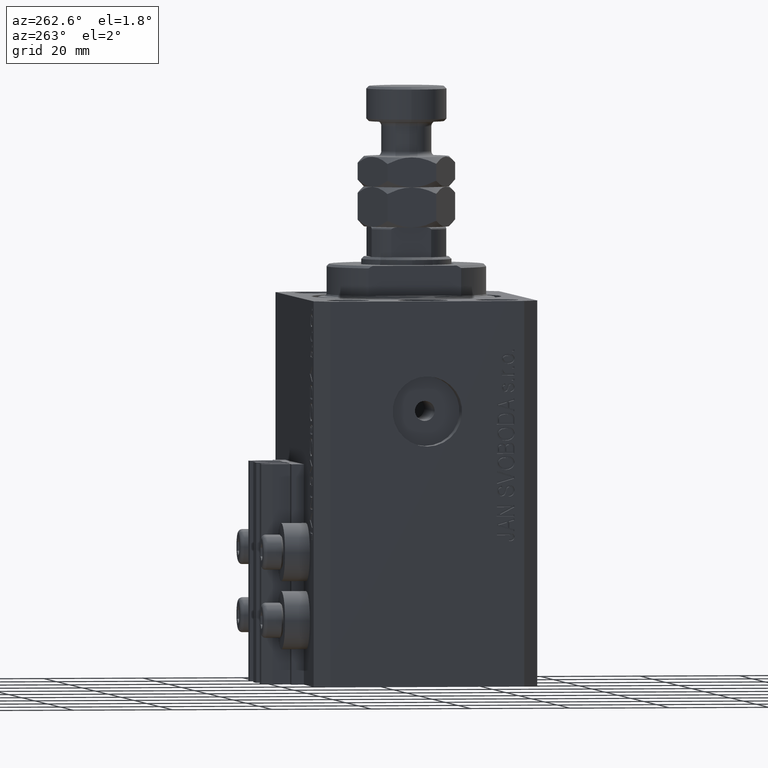
[diagram: clean part render]
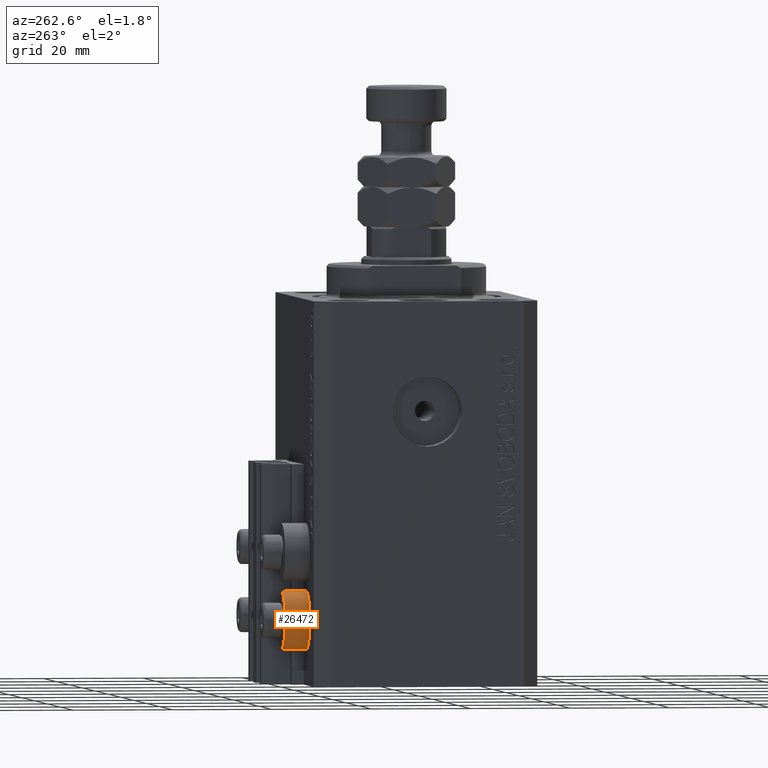
[diagram: same view with one face highlighted and labeled with its STEP entity id]
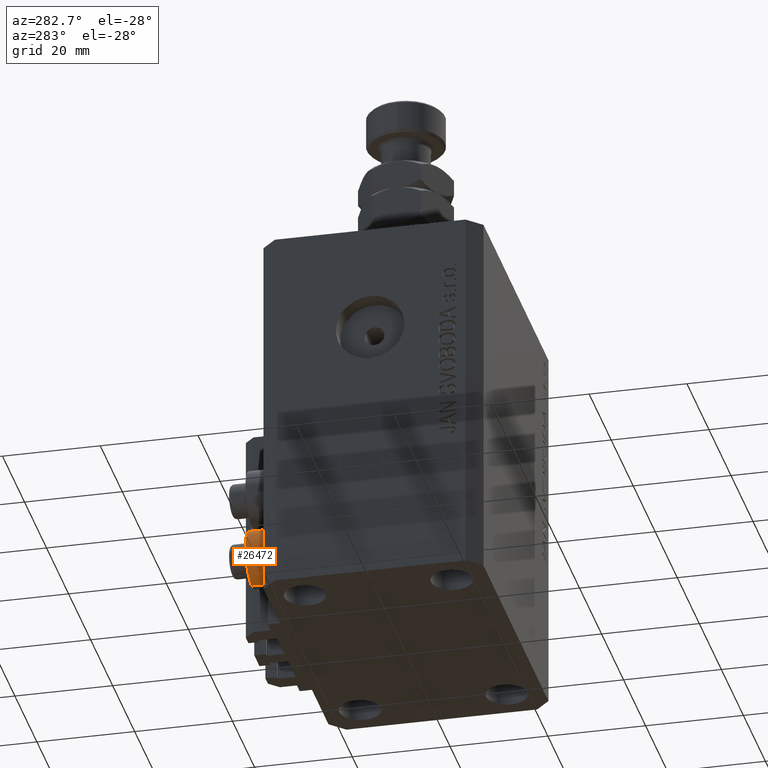
[diagram: same view with one face highlighted and labeled with its STEP entity id]
A machine part, auxiliary view. The second image highlights one B-rep face of the part: STEP entity #26472.
A second angle (auxiliary view) of the same face is appended — the face is thin or edge-on in the first view.
In plain terms, the highlighted cylindrical surface (edge-blend (fillet) strip) has radius 5.8 mm, axis along (0, 1, 0).
Its self-contained STEP definition (entity closure, byte-faithful):
#1596 = DIRECTION ( 'NONE',  ( 0.000000000000000000, 1.000000000000000000, 0.000000000000000000 ) ) ;
#2865 = AXIS2_PLACEMENT_3D ( 'NONE', #10614, #25697, #11347 ) ;
#6225 = VERTEX_POINT ( 'NONE', #31450 ) ;
#6318 = VERTEX_POINT ( 'NONE', #45413 ) ;
#6866 = DIRECTION ( 'NONE',  ( 0.000000000000000000, 1.000000000000000000, 0.000000000000000000 ) ) ;
#9189 = ORIENTED_EDGE ( 'NONE', *, *, #21953, .T. ) ;
#10614 = CARTESIAN_POINT ( 'NONE',  ( -18.00000000000000355, 27.49999999996051514, -64.00000000000000000 ) ) ;
#11347 = DIRECTION ( 'NONE',  ( 0.000000000000000000, 0.000000000000000000, -1.000000000000000000 ) ) ;
#12441 = DIRECTION ( 'NONE',  ( 0.000000000000000000, 1.000000000000000000, 0.000000000000000000 ) ) ;
#12705 = LINE ( 'NONE', #27783, #26233 ) ;
#13056 = VECTOR ( 'NONE', #12441, 1000.000000000000000 ) ;
#13587 = ORIENTED_EDGE ( 'NONE', *, *, #14026, .F. ) ;
#14026 = EDGE_CURVE ( 'NONE', #6225, #6318, #28676, .T. ) ;
#14281 = CARTESIAN_POINT ( 'NONE',  ( -18.00000000000000355, 27.49999999996051514, -64.00000000000000000 ) ) ;
#14545 = CARTESIAN_POINT ( 'NONE',  ( -18.00000000000000355, 27.49999999996051514, -69.79999999999999716 ) ) ;
#17221 = DIRECTION ( 'NONE',  ( 0.000000000000000000, 0.000000000000000000, -1.000000000000000000 ) ) ;
#18674 = EDGE_LOOP ( 'NONE', ( #13587, #9189, #40691, #38478 ) ) ;
#21953 = EDGE_CURVE ( 'NONE', #6225, #29133, #23798, .T. ) ;
#23452 = AXIS2_PLACEMENT_3D ( 'NONE', #14281, #6866, #48128 ) ;
#23798 = LINE ( 'NONE', #46274, #13056 ) ;
#24576 = EDGE_CURVE ( 'NONE', #29133, #43640, #33618, .T. ) ;
#25697 = DIRECTION ( 'NONE',  ( -0.000000000000000000, -1.000000000000000000, -0.000000000000000000 ) ) ;
#26233 = VECTOR ( 'NONE', #1596, 1000.000000000000000 ) ;
#26472 = ADVANCED_FACE ( 'NONE', ( #28872 ), #44164, .T. ) ;
#27783 = CARTESIAN_POINT ( 'NONE',  ( -18.00000000000000355, 27.49999999996051514, -69.79999999999999716 ) ) ;
#28676 = CIRCLE ( 'NONE', #37251, 5.799999999999999822 ) ;
#28843 = DIRECTION ( 'NONE',  ( -0.000000000000000000, -1.000000000000000000, -0.000000000000000000 ) ) ;
#28872 = FACE_OUTER_BOUND ( 'NONE', #18674, .T. ) ;
#29133 = VERTEX_POINT ( 'NONE', #41952 ) ;
#31450 = CARTESIAN_POINT ( 'NONE',  ( -18.00000000000000355, 22.49999999999951328, -58.20000000000000284 ) ) ;
#33618 = CIRCLE ( 'NONE', #2865, 5.799999999999999822 ) ;
#35515 = CARTESIAN_POINT ( 'NONE',  ( -18.00000000000000355, 22.49999999999951328, -64.00000000000000000 ) ) ;
#37251 = AXIS2_PLACEMENT_3D ( 'NONE', #35515, #28843, #17221 ) ;
#38478 = ORIENTED_EDGE ( 'NONE', *, *, #44117, .F. ) ;
#40691 = ORIENTED_EDGE ( 'NONE', *, *, #24576, .T. ) ;
#41952 = CARTESIAN_POINT ( 'NONE',  ( -18.00000000000000355, 27.49999999996051514, -58.20000000000000284 ) ) ;
#43640 = VERTEX_POINT ( 'NONE', #14545 ) ;
#44117 = EDGE_CURVE ( 'NONE', #6318, #43640, #12705, .T. ) ;
#44164 = CYLINDRICAL_SURFACE ( 'NONE', #23452, 5.799999999999999822 ) ;
#45413 = CARTESIAN_POINT ( 'NONE',  ( -18.00000000000000355, 22.49999999999951328, -69.79999999999999716 ) ) ;
#46274 = CARTESIAN_POINT ( 'NONE',  ( -18.00000000000000355, 27.49999999996051514, -58.20000000000000284 ) ) ;
#48128 = DIRECTION ( 'NONE',  ( 0.000000000000000000, 0.000000000000000000, -1.000000000000000000 ) ) ;